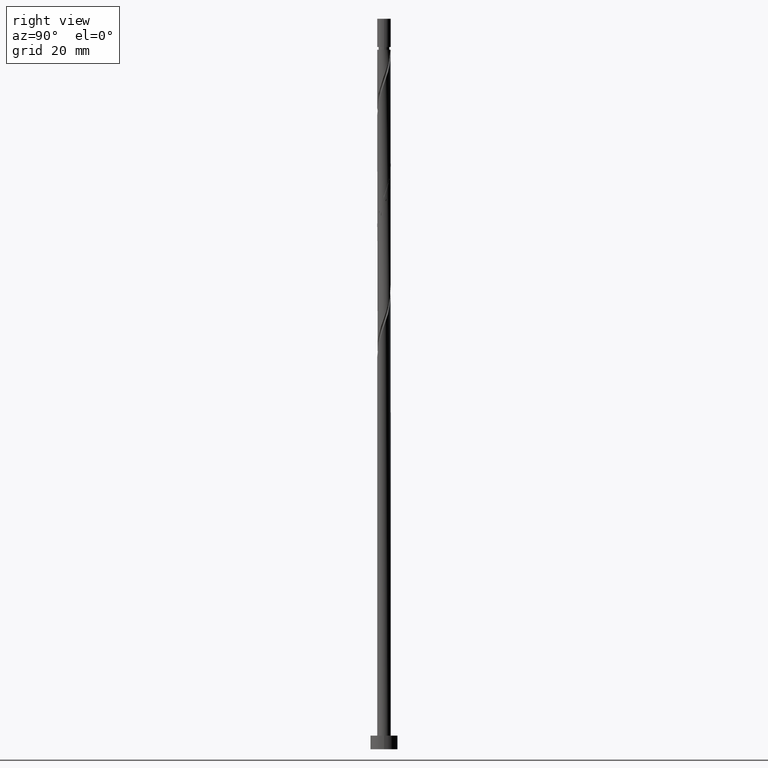
[diagram: clean part render]
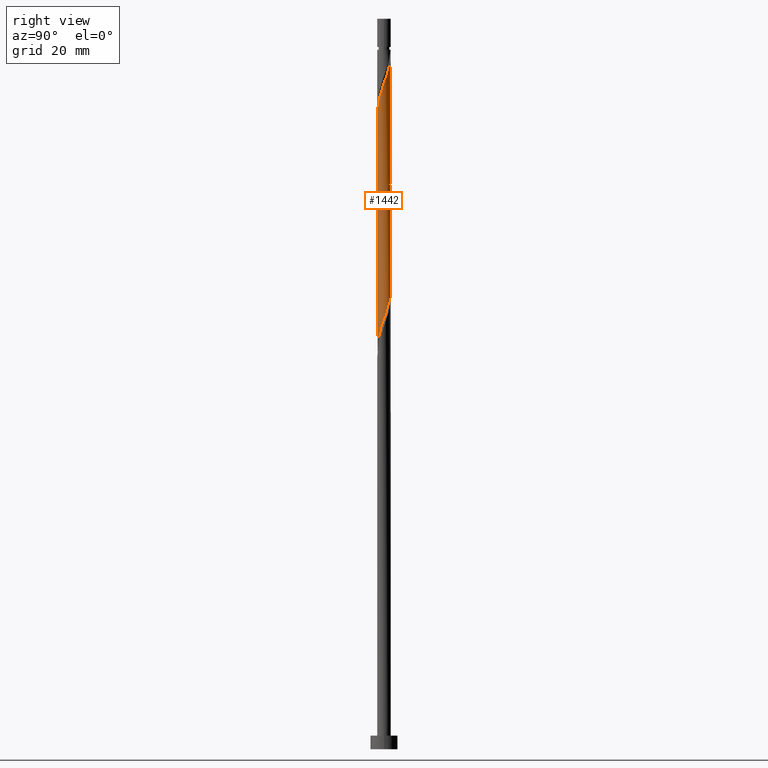
[diagram: same view with one face highlighted and labeled with its STEP entity id]
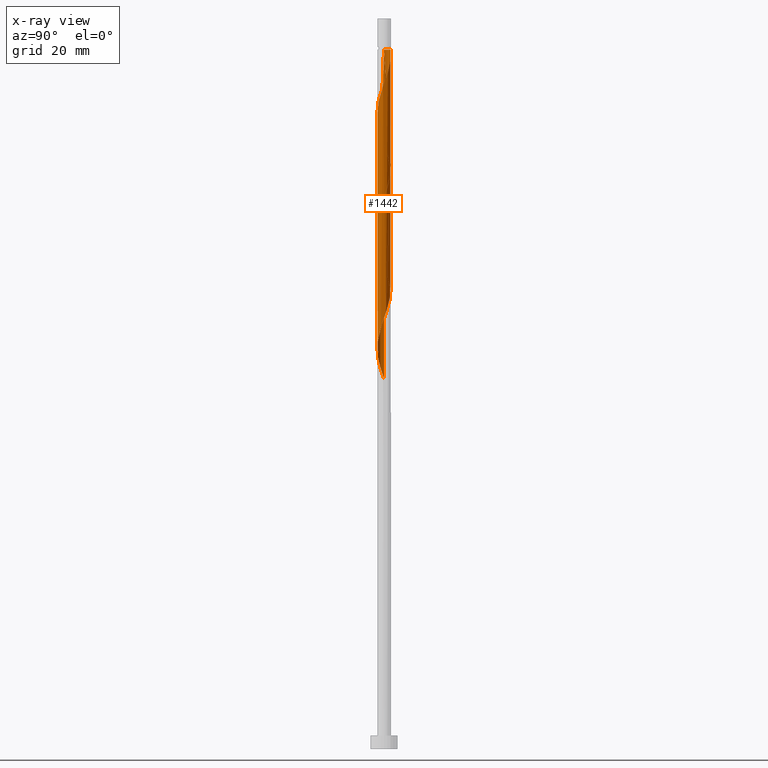
[diagram: x-ray of the same camera — body ghosted, the highlighted face saturated]
A machine part, right view. The second image highlights one B-rep face of the part: STEP entity #1442.
The next image is the same camera in x-ray: the body ghosted, the highlighted face saturated — about 0% of this face is hidden behind the body in this view.
In plain terms, the highlighted cylindrical surface (bore or boss wall) has radius 1.5 mm, axis along (-0, -0, -1).
Its self-contained STEP definition (entity closure, byte-faithful):
#8 = CARTESIAN_POINT ( 'NONE',  ( 0.5098503233045974525, 1.427082721123913878, 100.2378488519035926 ) ) ;
#15 = CARTESIAN_POINT ( 'NONE',  ( 1.499999999999999778, 2.131346950248223336E-15, 121.6933639372650759 ) ) ;
#26 = ORIENTED_EDGE ( 'NONE', *, *, #1044, .F. ) ;
#34 = CARTESIAN_POINT ( 'NONE',  ( -1.086320624467306040, 1.056607754070165717, 131.7530003670551082 ) ) ;
#40 = DIRECTION ( 'NONE',  ( -0.000000000000000000, -0.000000000000000000, -1.000000000000000000 ) ) ;
#48 = EDGE_CURVE ( 'NONE', #680, #933, #635, .T. ) ;
#78 = CARTESIAN_POINT ( 'NONE',  ( 1.497517962423707383, 0.08625515763335768471, 146.9045155185702640 ) ) ;
#83 = CARTESIAN_POINT ( 'NONE',  ( 1.499999999999999778, 2.131346950248223336E-15, 121.6933639372650759 ) ) ;
#90 = CARTESIAN_POINT ( 'NONE',  ( -0.7446362021362263883, -1.319859602977673019, 137.8136064276611137 ) ) ;
#94 = CARTESIAN_POINT ( 'NONE',  ( 0.08714213895937576726, 1.512917278876086069, 101.4499700640247823 ) ) ;
#98 = CARTESIAN_POINT ( 'NONE',  ( 1.213159217434433890, -0.8821817914431652197, 92.35906097311568885 ) ) ;
#104 = CARTESIAN_POINT ( 'NONE',  ( 0.1277418221353510408, -1.494550777617655868, 115.3893640034187200 ) ) ;
#111 = CARTESIAN_POINT ( 'NONE',  ( 1.339997810401561518, -0.7077558288161656108, 119.6317882458429551 ) ) ;
#118 = CARTESIAN_POINT ( 'NONE',  ( 0.7446362021362249450, -1.319859602977671020, 90.54087915493391847 ) ) ;
#120 =( BOUNDED_CURVE ( )  B_SPLINE_CURVE ( 2, ( #1490, #696, #1166, #428, #438, #1137, #421, #1496, #920, #90, #911, #1256, #1286, #1024, #1376, #1388, #1251, #456, #661, #306, #1174, #1395, #686, #572, #78, #298, #798, #561, #201, #1052, #1523, #1039, #1275, #900, #193, #936, #785 ),
 .UNSPECIFIED., .F., .T. ) 
 B_SPLINE_CURVE_WITH_KNOTS ( ( 3, 2, 2, 2, 2, 2, 2, 2, 2, 2, 2, 2, 2, 2, 2, 2, 2, 2, 3 ),
 ( 0.5545252162417514397, 0.5568181818181818787, 0.5681818181818181213, 0.5795454545454545858, 0.5909090909090908283, 0.6022727272727272929, 0.6136363636363636465, 0.6250000000000000000, 0.6363636363636364646, 0.6477272727272727071, 0.6590909090909091717, 0.6704545454545455252, 0.6818181818181818787, 0.6931818181818182323, 0.7045454545454546968, 0.7159090909090909394, 0.7272727272727274039, 0.7386363636363637575, 0.7500000000000001110 ),
 .UNSPECIFIED. ) 
 CURVE ( )  GEOMETRIC_REPRESENTATION_ITEM ( )  RATIONAL_B_SPLINE_CURVE ( ( 0.9061101570135737804, 0.9072237824201559997, 0.9090909090909334855, 0.8998376744372357239, 0.9090909090909334855, 0.8998376744372357239, 0.9090909090909334855, 0.8998376744372357239, 0.9090909090909334855, 0.8998376744372357239, 0.9090909090909334855, 0.8998376744372357239, 0.9090909090909334855, 0.8998376744372357239, 0.9090909090909334855, 0.8998376744372357239, 0.9090909090909334855, 0.8998376744372357239, 0.9090909090909334855, 0.8998376744372357239, 0.9090909090909334855, 0.8998376744372357239, 0.9090909090909334855, 0.8998376744372357239, 0.9090909090909334855, 0.8998376744372357239, 0.9090909090909334855, 0.8998376744372357239, 0.9090909090909334855, 0.8998376744372357239, 0.9090909090909334855, 0.8998376744372357239, 0.9090909090909334855, 0.8998376744372357239, 0.9090909090909334855, 0.8998376744372356129, 0.9090909090909335966 ) ) 
 REPRESENTATION_ITEM ( '' )  );
#145 = DIRECTION ( 'NONE',  ( -0.000000000000000000, -0.000000000000000000, -1.000000000000000000 ) ) ;
#159 = CARTESIAN_POINT ( 'NONE',  ( -0.5436309926831520700, 1.398021939668448566, 129.9348185488732668 ) ) ;
#176 = CIRCLE ( 'NONE', #1292, 1.499999999999993561 ) ;
#177 = CARTESIAN_POINT ( 'NONE',  ( -0.9154784133017651593, 1.188233678523918035, 131.1469397609944849 ) ) ;
#184 = FACE_OUTER_BOUND ( 'NONE', #972, .T. ) ;
#193 = CARTESIAN_POINT ( 'NONE',  ( 0.1277418221353521510, 1.494550777617658754, 152.9651215791763263 ) ) ;
#201 = CARTESIAN_POINT ( 'NONE',  ( 1.213159217434436110, 0.8821817914431661078, 149.3287579428127572 ) ) ;
#210 = CARTESIAN_POINT ( 'NONE',  ( -0.2984962311319866446, -1.469999999999999751, 114.1772427912975161 ) ) ;
#215 = CARTESIAN_POINT ( 'NONE',  ( 1.485116343010913109, -0.3015657354974669579, 120.8439094579641733 ) ) ;
#221 = CARTESIAN_POINT ( 'NONE',  ( 1.045853010636304870, 1.075263446855224236, 98.41966703372175118 ) ) ;
#226 = CARTESIAN_POINT ( 'NONE',  ( -0.08714213895937615584, -1.512917278876086735, 88.11663673069149638 ) ) ;
#234 = VECTOR ( 'NONE', #899, 1000.000000000000000 ) ;
#239 = CARTESIAN_POINT ( 'NONE',  ( 1.509919581836496993, 0.1290554202307504228, 95.38936400341874844 ) ) ;
#257 = ORIENTED_EDGE ( 'NONE', *, *, #1291, .T. ) ;
#262 = CARTESIAN_POINT ( 'NONE',  ( -1.200452554620303758, -0.9248924852164293053, 84.48027309432781351 ) ) ;
#269 = CARTESIAN_POINT ( 'NONE',  ( 0.000000000000000000, 0.000000000000000000, 154.1772427912975161 ) ) ;
#298 = CARTESIAN_POINT ( 'NONE',  ( 1.485116343010915330, 0.3015657354974667359, 147.5105761246308305 ) ) ;
#304 = DIRECTION ( 'NONE',  ( -0.000000000000000000, -0.000000000000000000, -1.000000000000000000 ) ) ;
#306 = CARTESIAN_POINT ( 'NONE',  ( 1.200452554620305756, -0.9248924852164310817, 143.8742124882672044 ) ) ;
#327 = CARTESIAN_POINT ( 'NONE',  ( 0.7005518949784517169, 1.326358564808965745, 126.2984549125096265 ) ) ;
#335 = CARTESIAN_POINT ( 'NONE',  ( -1.412398115979203617, -0.5492212733340102737, 109.9348185488732668 ) ) ;
#339 = CARTESIAN_POINT ( 'NONE',  ( 1.461158848907850416, 0.3391383467823799180, 95.99542460947932909 ) ) ;
#340 = CARTESIAN_POINT ( 'NONE',  ( 1.499999999999999778, 2.131346950248223336E-15, 121.6933639372650759 ) ) ;
#346 = CARTESIAN_POINT ( 'NONE',  ( -1.509919581836496993, -0.1290554202307509224, 108.7226973367520770 ) ) ;
#351 = CARTESIAN_POINT ( 'NONE',  ( 1.412557076706236980, -0.5046607821568163121, 93.57118218523687858 ) ) ;
#358 = CARTESIAN_POINT ( 'NONE',  ( -0.7005518949784516058, -1.326358564808965745, 86.29845491250964074 ) ) ;
#362 = VERTEX_POINT ( 'NONE', #919 ) ;
#420 = VECTOR ( 'NONE', #1285, 1000.000000000000000 ) ;
#421 = CARTESIAN_POINT ( 'NONE',  ( -1.213159217434436110, -0.8821817914431666630, 135.9954246094793575 ) ) ;
#428 = CARTESIAN_POINT ( 'NONE',  ( -1.485116343010915330, -0.3015657354974669024, 134.1772427912975161 ) ) ;
#438 = CARTESIAN_POINT ( 'NONE',  ( -1.412557076706239645, -0.5046607821568167562, 134.7833033973581109 ) ) ;
#443 = VERTEX_POINT ( 'NONE', #536 ) ;
#447 = LINE ( 'NONE', #1097, #420 ) ;
#456 = CARTESIAN_POINT ( 'NONE',  ( 0.8912534666523075355, -1.225634408494020722, 142.6620912761460147 ) ) ;
#464 = CARTESIAN_POINT ( 'NONE',  ( -1.086320624467306040, 1.056607754070165717, 105.0863337003884226 ) ) ;
#469 = CARTESIAN_POINT ( 'NONE',  ( -0.7005518949784516058, -1.326358564808965745, 112.9651215791762979 ) ) ;
#474 = CARTESIAN_POINT ( 'NONE',  ( -0.7446362021362251671, 1.319859602977671020, 103.8742124882672186 ) ) ;
#481 = CARTESIAN_POINT ( 'NONE',  ( -0.5098503233045974525, -1.427082721123913878, 86.90451551857026402 ) ) ;
#489 = CARTESIAN_POINT ( 'NONE',  ( -1.045853010636305314, -1.075263446855223792, 111.7530003670550656 ) ) ;
#493 = DIRECTION ( 'NONE',  ( -1.000000000000000000, 0.000000000000000000, 0.000000000000000000 ) ) ;
#498 = CARTESIAN_POINT ( 'NONE',  ( -1.500000000000000000, 0.04316328978573589353, 134.9045992658801936 ) ) ;
#502 = CARTESIAN_POINT ( 'NONE',  ( -1.500000000000000000, -3.440068761804149870E-16, 135.0266972705984188 ) ) ;
#510 = ORIENTED_EDGE ( 'NONE', *, *, #558, .F. ) ;
#512 = VERTEX_POINT ( 'NONE', #1136 ) ;
#515 = AXIS2_PLACEMENT_3D ( 'NONE', #897, #304, #534 ) ;
#517 = CARTESIAN_POINT ( 'NONE',  ( -1.412398115979203617, -0.5492212733340102737, 83.26815188220662378 ) ) ;
#527 = LINE ( 'NONE', #1116, #741 ) ;
#534 = DIRECTION ( 'NONE',  ( -1.000000000000000000, 0.000000000000000000, 0.000000000000000000 ) ) ;
#536 = CARTESIAN_POINT ( 'NONE',  ( -0.2984962311320396577, 1.470000000000532214, 154.1772427912974592 ) ) ;
#558 = EDGE_CURVE ( 'NONE', #563, #933, #560, .T. ) ;
#560 = LINE ( 'NONE', #1489, #234 ) ;
#561 = CARTESIAN_POINT ( 'NONE',  ( 1.339997810401563738, 0.7077558288161661659, 148.7226973367520486 ) ) ;
#563 = VERTEX_POINT ( 'NONE', #784 ) ;
#572 = CARTESIAN_POINT ( 'NONE',  ( 1.509919581836498992, -0.1290554202307514498, 146.2984549125096407 ) ) ;
#575 = CARTESIAN_POINT ( 'NONE',  ( 1.500000000000000222, 0.1717933910776848205, 122.1793238902364180 ) ) ;
#581 = CARTESIAN_POINT ( 'NONE',  ( 0.2984962311319868666, 1.469999999999999751, 100.8439094579641448 ) ) ;
#585 = CARTESIAN_POINT ( 'NONE',  ( -0.3426257832300788064, 1.476184276359225889, 102.6620912761460147 ) ) ;
#593 = CARTESIAN_POINT ( 'NONE',  ( -1.200452554620303758, -0.9248924852164293053, 111.1469397609944707 ) ) ;
#597 = EDGE_CURVE ( 'NONE', #731, #362, #447, .T. ) ;
#600 = CARTESIAN_POINT ( 'NONE',  ( 1.500000000000000000, -0.04316328978573300001, 121.5712659325468366 ) ) ;
#607 = CARTESIAN_POINT ( 'NONE',  ( -0.8912534666523063143, -1.225634408494019167, 85.69239430644904587 ) ) ;
#624 = CARTESIAN_POINT ( 'NONE',  ( -1.306425335299753243, -0.7370568792752196785, 83.87421248826719022 ) ) ;
#629 = CARTESIAN_POINT ( 'NONE',  ( -1.339997810401561518, 0.7077558288161657218, 132.9651215791762979 ) ) ;
#635 =( BOUNDED_CURVE ( )  B_SPLINE_CURVE ( 2, ( #1011, #498, #984, #1329, #1227, #629, #1111, #34, #177, #1243, #159, #716, #1513, #1308, #1407, #1412, #327, #704, #807, #816, #943, #1287, #1175, #575, #340 ),
 .UNSPECIFIED., .F., .T. ) 
 B_SPLINE_CURVE_WITH_KNOTS ( ( 3, 2, 2, 2, 2, 2, 2, 2, 2, 2, 2, 2, 3 ),
 ( 0.4295252162417514397, 0.4318181818181818232, 0.4431818181818181768, 0.4545454545454545303, 0.4659090909090908839, 0.4772727272727272929, 0.4886363636363636465, 0.5000000000000000000, 0.5113636363636363535, 0.5227272727272727071, 0.5340909090909090606, 0.5454545454545454142, 0.5545252162417512176 ),
 .UNSPECIFIED. ) 
 CURVE ( )  GEOMETRIC_REPRESENTATION_ITEM ( )  RATIONAL_B_SPLINE_CURVE ( ( 0.9061101570135671190, 0.9072237824201493384, 0.9090909090909268242, 0.8998376744372288405, 0.9090909090909268242, 0.8998376744372288405, 0.9090909090909268242, 0.8998376744372288405, 0.9090909090909268242, 0.8998376744372288405, 0.9090909090909268242, 0.8998376744372288405, 0.9090909090909268242, 0.8998376744372288405, 0.9090909090909268242, 0.8998376744372288405, 0.9090909090909268242, 0.8998376744372288405, 0.9090909090909268242, 0.8998376744372288405, 0.9090909090909268242, 0.8998376744372288405, 0.9090909090909268242, 0.9017048011080064374, 0.9061101570135670080 ) ) 
 REPRESENTATION_ITEM ( '' )  );
#661 = CARTESIAN_POINT ( 'NONE',  ( 1.045853010636306202, -1.075263446855226235, 143.2681518822066096 ) ) ;
#680 = VERTEX_POINT ( 'NONE', #502 ) ;
#686 = CARTESIAN_POINT ( 'NONE',  ( 1.461158848907852859, -0.3391383467823813058, 145.6923943064491311 ) ) ;
#696 = CARTESIAN_POINT ( 'NONE',  ( -1.500000000000002442, -0.04316328978573490127, 133.4498863167148386 ) ) ;
#703 = CARTESIAN_POINT ( 'NONE',  ( -1.497517962423704718, 0.08625515763335817043, 108.1166367306914537 ) ) ;
#704 = CARTESIAN_POINT ( 'NONE',  ( 0.8912534666523063143, 1.225634408494018723, 125.6923943064490459 ) ) ;
#710 = CARTESIAN_POINT ( 'NONE',  ( 1.213159217434433890, -0.8821817914431652197, 119.0257276397823745 ) ) ;
#715 = CARTESIAN_POINT ( 'NONE',  ( 1.200452554620303536, 0.9248924852164295274, 97.81360642766118474 ) ) ;
#716 = CARTESIAN_POINT ( 'NONE',  ( -0.3426257832300788064, 1.476184276359225889, 129.3287579428126719 ) ) ;
#722 = CARTESIAN_POINT ( 'NONE',  ( 1.497517962423704718, -0.08625515763335836472, 94.78330339735811094 ) ) ;
#728 = CARTESIAN_POINT ( 'NONE',  ( -0.8912534666523063143, -1.225634408494019167, 112.3590609731156889 ) ) ;
#731 = VERTEX_POINT ( 'NONE', #750 ) ;
#741 = VECTOR ( 'NONE', #40, 1000.000000000000000 ) ;
#750 = CARTESIAN_POINT ( 'NONE',  ( -1.500000000000002442, 7.702762662300539942E-16, 133.3277883119966134 ) ) ;
#752 = CARTESIAN_POINT ( 'NONE',  ( -1.500000000000000444, 1.757426432660816093E-15, 81.69336393726507595 ) ) ;
#765 = CARTESIAN_POINT ( 'NONE',  ( -1.500000000000000222, -0.1717933910776853201, 82.17932389023640383 ) ) ;
#784 = CARTESIAN_POINT ( 'NONE',  ( 1.500000000000000222, 1.836970198721030181E-16, 154.1772427912975161 ) ) ;
#785 = CARTESIAN_POINT ( 'NONE',  ( -0.2984962311320396577, 1.470000000000532214, 154.1772427912974592 ) ) ;
#796 = CYLINDRICAL_SURFACE ( 'NONE', #515, 1.500000000000000222 ) ;
#798 = CARTESIAN_POINT ( 'NONE',  ( 1.412557076706239645, 0.5046607821568165342, 148.1166367306914822 ) ) ;
#807 = CARTESIAN_POINT ( 'NONE',  ( 1.045853010636304870, 1.075263446855224236, 125.0863337003884368 ) ) ;
#814 = CARTESIAN_POINT ( 'NONE',  ( -0.08714213895937615584, -1.512917278876086735, 114.7833033973581252 ) ) ;
#816 = CARTESIAN_POINT ( 'NONE',  ( 1.200452554620303536, 0.9248924852164295274, 124.4802730943278419 ) ) ;
#820 = CARTESIAN_POINT ( 'NONE',  ( 1.339997810401561518, -0.7077558288161656108, 92.96512157917629793 ) ) ;
#827 = CARTESIAN_POINT ( 'NONE',  ( -0.5436309926831520700, 1.398021939668448566, 103.2681518822065811 ) ) ;
#834 = CARTESIAN_POINT ( 'NONE',  ( 0.9154784133017650483, -1.188233678523918035, 91.14693976099447070 ) ) ;
#841 = CARTESIAN_POINT ( 'NONE',  ( 0.1277418221353510408, -1.494550777617655868, 88.72269733675204861 ) ) ;
#897 = CARTESIAN_POINT ( 'NONE',  ( 0.000000000000000000, 0.000000000000000000, 161.0000000000000000 ) ) ;
#899 = DIRECTION ( 'NONE',  ( -0.000000000000000000, -0.000000000000000000, -1.000000000000000000 ) ) ;
#900 = CARTESIAN_POINT ( 'NONE',  ( 0.3426257832300796946, 1.476184276359228109, 152.3590609731157599 ) ) ;
#911 = CARTESIAN_POINT ( 'NONE',  ( -0.5436309926831534023, -1.398021939668451008, 138.4196670337217654 ) ) ;
#919 = CARTESIAN_POINT ( 'NONE',  ( -1.500000000000000444, 1.757426432660816093E-15, 81.69336393726507595 ) ) ;
#920 = CARTESIAN_POINT ( 'NONE',  ( -0.9154784133017672687, -1.188233678523920034, 137.2075458216005472 ) ) ;
#930 = EDGE_CURVE ( 'NONE', #731, #443, #120, .T. ) ;
#933 = VERTEX_POINT ( 'NONE', #83 ) ;
#936 = CARTESIAN_POINT ( 'NONE',  ( -0.08714213895937755749, 1.512917278876088734, 153.5711821852369781 ) ) ;
#942 = CARTESIAN_POINT ( 'NONE',  ( 1.412557076706236980, -0.5046607821568163121, 120.2378488519035642 ) ) ;
#943 = CARTESIAN_POINT ( 'NONE',  ( 1.306425335299753243, 0.7370568792752199005, 123.8742124882671902 ) ) ;
#948 = CARTESIAN_POINT ( 'NONE',  ( 0.5436309926831520700, -1.398021939668448566, 89.93481854887326676 ) ) ;
#956 = CARTESIAN_POINT ( 'NONE',  ( 1.306425335299753243, 0.7370568792752199005, 97.20754582160053303 ) ) ;
#963 = CARTESIAN_POINT ( 'NONE',  ( -0.5098503233045974525, -1.427082721123913878, 113.5711821852369354 ) ) ;
#972 = EDGE_LOOP ( 'NONE', ( #26, #257, #1252, #1219, #1493, #510, #1042, #993 ) ) ;
#984 = CARTESIAN_POINT ( 'NONE',  ( -1.497517962423704718, 0.08625515763335817043, 134.7833033973581109 ) ) ;
#993 = ORIENTED_EDGE ( 'NONE', *, *, #48, .F. ) ;
#1011 = CARTESIAN_POINT ( 'NONE',  ( -1.500000000000000000, -3.440068761804149870E-16, 135.0266972705984188 ) ) ;
#1018 = EDGE_CURVE ( 'NONE', #933, #362, #1163, .T. ) ;
#1024 = CARTESIAN_POINT ( 'NONE',  ( 0.08714213895937560073, -1.512917278876088512, 140.2378488519034931 ) ) ;
#1039 = CARTESIAN_POINT ( 'NONE',  ( 0.7446362021362260553, 1.319859602977673019, 151.1469397609945133 ) ) ;
#1042 = ORIENTED_EDGE ( 'NONE', *, *, #558, .T. ) ;
#1044 = EDGE_CURVE ( 'NONE', #512, #680, #527, .T. ) ;
#1052 = CARTESIAN_POINT ( 'NONE',  ( 1.086320624467308482, 1.056607754070166161, 149.9348185488732952 ) ) ;
#1062 = CARTESIAN_POINT ( 'NONE',  ( 0.8912534666523063143, 1.225634408494018723, 99.02572763978238868 ) ) ;
#1069 = CARTESIAN_POINT ( 'NONE',  ( 1.086320624467306484, -1.056607754070165273, 91.75300036705510820 ) ) ;
#1080 = CARTESIAN_POINT ( 'NONE',  ( -1.306425335299753243, -0.7370568792752196785, 110.5408791549338758 ) ) ;
#1086 = CARTESIAN_POINT ( 'NONE',  ( 0.5436309926831520700, -1.398021939668448566, 116.6014852155399524 ) ) ;
#1092 = CARTESIAN_POINT ( 'NONE',  ( -1.045853010636305314, -1.075263446855223792, 85.08633370038840837 ) ) ;
#1097 = CARTESIAN_POINT ( 'NONE',  ( -1.500000000000000222, 0.000000000000000000, 161.0000000000000000 ) ) ;
#1111 = CARTESIAN_POINT ( 'NONE',  ( -1.213159217434433668, 0.8821817914431653307, 132.3590609731157031 ) ) ;
#1116 = CARTESIAN_POINT ( 'NONE',  ( -1.500000000000000222, 0.000000000000000000, 161.0000000000000000 ) ) ;
#1136 = CARTESIAN_POINT ( 'NONE',  ( -1.499999999999993561, 0.000000000000000000, 154.1772427912975161 ) ) ;
#1137 = CARTESIAN_POINT ( 'NONE',  ( -1.339997810401563294, -0.7077558288161666100, 135.3893640034187626 ) ) ;
#1163 =( BOUNDED_CURVE ( )  B_SPLINE_CURVE ( 2, ( #15, #600, #1543, #215, #942, #111, #710, #1194, #1406, #1210, #1086, #1295, #104, #814, #210, #963, #469, #728, #489, #593, #1080, #335, #1417, #346, #703, #1301, #1411, #1431, #1189, #464, #1325, #474, #827, #585, #1179, #94, #581, #8, #1307, #1062, #221, #715, #956, #1531, #339, #239, #722, #1535, #351, #820, #98, #1069, #834, #118, #948, #1315, #841, #226, #1202, #481, #358, #607, #1092, #262, #624, #517, #1353, #765, #752 ),
 .UNSPECIFIED., .F., .T. ) 
 B_SPLINE_CURVE_WITH_KNOTS ( ( 3, 2, 2, 2, 2, 2, 2, 2, 2, 2, 2, 2, 2, 2, 2, 2, 2, 2, 2, 2, 2, 2, 2, 2, 2, 2, 2, 2, 2, 2, 2, 2, 2, 2, 3 ),
 ( 0.5545252162417512176, 0.5568181818181817677, 0.5681818181818182323, 0.5795454545454545858, 0.5909090909090909394, 0.6022727272727272929, 0.6136363636363636465, 0.6250000000000000000, 0.6363636363636363535, 0.6477272727272727071, 0.6590909090909090606, 0.6704545454545454142, 0.6818181818181817677, 0.6931818181818182323, 0.7045454545454545858, 0.7159090909090909394, 0.7272727272727272929, 0.7386363636363636465, 0.7500000000000000000, 0.7613636363636363535, 0.7727272727272727071, 0.7840909090909090606, 0.7954545454545454142, 0.8068181818181817677, 0.8181818181818182323, 0.8295454545454545858, 0.8409090909090909394, 0.8522727272727272929, 0.8636363636363636465, 0.8750000000000000000, 0.8863636363636363535, 0.8977272727272727071, 0.9090909090909090606, 0.9204545454545454142, 0.9295252162417512176 ),
 .UNSPECIFIED. ) 
 CURVE ( )  GEOMETRIC_REPRESENTATION_ITEM ( )  RATIONAL_B_SPLINE_CURVE ( ( 0.9061101570135670080, 0.9072237824201492273, 0.9090909090909268242, 0.8998376744372288405, 0.9090909090909268242, 0.8998376744372288405, 0.9090909090909268242, 0.8998376744372288405, 0.9090909090909268242, 0.8998376744372288405, 0.9090909090909268242, 0.8998376744372288405, 0.9090909090909268242, 0.8998376744372288405, 0.9090909090909268242, 0.8998376744372288405, 0.9090909090909268242, 0.8998376744372288405, 0.9090909090909268242, 0.8998376744372288405, 0.9090909090909268242, 0.8998376744372288405, 0.9090909090909268242, 0.8998376744372288405, 0.9090909090909268242, 0.8998376744372288405, 0.9090909090909268242, 0.8998376744372288405, 0.9090909090909268242, 0.8998376744372288405, 0.9090909090909268242, 0.8998376744372288405, 0.9090909090909268242, 0.8998376744372288405, 0.9090909090909268242, 0.8998376744372288405, 0.9090909090909268242, 0.8998376744372288405, 0.9090909090909268242, 0.8998376744372288405, 0.9090909090909268242, 0.8998376744372288405, 0.9090909090909268242, 0.8998376744372288405, 0.9090909090909268242, 0.8998376744372288405, 0.9090909090909268242, 0.8998376744372288405, 0.9090909090909268242, 0.8998376744372288405, 0.9090909090909268242, 0.8998376744372288405, 0.9090909090909268242, 0.8998376744372288405, 0.9090909090909268242, 0.8998376744372288405, 0.9090909090909268242, 0.8998376744372288405, 0.9090909090909268242, 0.8998376744372288405, 0.9090909090909268242, 0.8998376744372288405, 0.9090909090909268242, 0.8998376744372288405, 0.9090909090909268242, 0.8998376744372288405, 0.9090909090909268242, 0.9017048011080064374, 0.9061101570135670080 ) ) 
 REPRESENTATION_ITEM ( '' )  );
#1166 = CARTESIAN_POINT ( 'NONE',  ( -1.497517962423707383, -0.08625515763335786512, 133.5711821852368928 ) ) ;
#1174 = CARTESIAN_POINT ( 'NONE',  ( 1.306425335299755464, -0.7370568792752213438, 144.4802730943279130 ) ) ;
#1175 = CARTESIAN_POINT ( 'NONE',  ( 1.461158848907850416, 0.3391383467823799180, 122.6620912761459863 ) ) ;
#1179 = CARTESIAN_POINT ( 'NONE',  ( -0.1277418221353515404, 1.494550777617655868, 102.0560306700853914 ) ) ;
#1189 = CARTESIAN_POINT ( 'NONE',  ( -1.213159217434433668, 0.8821817914431653307, 105.6923943064490317 ) ) ;
#1194 = CARTESIAN_POINT ( 'NONE',  ( 1.086320624467306484, -1.056607754070165273, 118.4196670337217370 ) ) ;
#1202 = CARTESIAN_POINT ( 'NONE',  ( -0.2984962311319866446, -1.469999999999999751, 87.51057612463084467 ) ) ;
#1210 = CARTESIAN_POINT ( 'NONE',  ( 0.7446362021362249450, -1.319859602977671020, 117.2075458216005188 ) ) ;
#1219 = ORIENTED_EDGE ( 'NONE', *, *, #597, .T. ) ;
#1227 = CARTESIAN_POINT ( 'NONE',  ( -1.412557076706236980, 0.5046607821568160901, 133.5711821852368928 ) ) ;
#1243 = CARTESIAN_POINT ( 'NONE',  ( -0.7446362021362251671, 1.319859602977671020, 130.5408791549338900 ) ) ;
#1251 = CARTESIAN_POINT ( 'NONE',  ( 0.7005518949784523830, -1.326358564808968632, 142.0560306700853914 ) ) ;
#1252 = ORIENTED_EDGE ( 'NONE', *, *, #930, .F. ) ;
#1256 = CARTESIAN_POINT ( 'NONE',  ( -0.3426257832300795281, -1.476184276359228109, 139.0257276397823887 ) ) ;
#1275 = CARTESIAN_POINT ( 'NONE',  ( 0.5436309926831531802, 1.398021939668451008, 151.7530003670551366 ) ) ;
#1285 = DIRECTION ( 'NONE',  ( -0.000000000000000000, -0.000000000000000000, -1.000000000000000000 ) ) ;
#1286 = CARTESIAN_POINT ( 'NONE',  ( -0.1277418221353519845, -1.494550777617658754, 139.6317882458429835 ) ) ;
#1287 = CARTESIAN_POINT ( 'NONE',  ( 1.412398115979204061, 0.5492212733340094966, 123.2681518822066096 ) ) ;
#1291 = EDGE_CURVE ( 'NONE', #512, #443, #176, .T. ) ;
#1292 = AXIS2_PLACEMENT_3D ( 'NONE', #269, #145, #493 ) ;
#1295 = CARTESIAN_POINT ( 'NONE',  ( 0.3426257832300790840, -1.476184276359225667, 115.9954246094793575 ) ) ;
#1301 = CARTESIAN_POINT ( 'NONE',  ( -1.485116343010913109, 0.3015657354974668469, 107.5105761246308589 ) ) ;
#1307 = CARTESIAN_POINT ( 'NONE',  ( 0.7005518949784517169, 1.326358564808965745, 99.63178824584298354 ) ) ;
#1308 = CARTESIAN_POINT ( 'NONE',  ( 0.08714213895937576726, 1.512917278876086069, 128.1166367306914253 ) ) ;
#1315 = CARTESIAN_POINT ( 'NONE',  ( 0.3426257832300790840, -1.476184276359225667, 89.32875794281268611 ) ) ;
#1325 = CARTESIAN_POINT ( 'NONE',  ( -0.9154784133017651593, 1.188233678523918035, 104.4802730943278135 ) ) ;
#1329 = CARTESIAN_POINT ( 'NONE',  ( -1.485116343010913109, 0.3015657354974668469, 134.1772427912975161 ) ) ;
#1353 = CARTESIAN_POINT ( 'NONE',  ( -1.461158848907849972, -0.3391383467823803621, 82.66209127614600050 ) ) ;
#1376 = CARTESIAN_POINT ( 'NONE',  ( 0.2984962311319867556, -1.470000000000002416, 140.8439094579642017 ) ) ;
#1388 = CARTESIAN_POINT ( 'NONE',  ( 0.5098503233045976746, -1.427082721123916320, 141.4499700640247966 ) ) ;
#1395 = CARTESIAN_POINT ( 'NONE',  ( 1.412398115979206503, -0.5492212733340109398, 145.0863337003884226 ) ) ;
#1406 = CARTESIAN_POINT ( 'NONE',  ( 0.9154784133017650483, -1.188233678523918035, 117.8136064276611279 ) ) ;
#1407 = CARTESIAN_POINT ( 'NONE',  ( 0.2984962311319868666, 1.469999999999999751, 127.5105761246308305 ) ) ;
#1411 = CARTESIAN_POINT ( 'NONE',  ( -1.412557076706236980, 0.5046607821568160901, 106.9045155185702356 ) ) ;
#1412 = CARTESIAN_POINT ( 'NONE',  ( 0.5098503233045974525, 1.427082721123913878, 126.9045155185702072 ) ) ;
#1417 = CARTESIAN_POINT ( 'NONE',  ( -1.461158848907849972, -0.3391383467823803621, 109.3287579428126435 ) ) ;
#1431 = CARTESIAN_POINT ( 'NONE',  ( -1.339997810401561518, 0.7077558288161657218, 106.2984549125096549 ) ) ;
#1442 = ADVANCED_FACE ( 'NONE', ( #184 ), #796, .T. ) ;
#1489 = CARTESIAN_POINT ( 'NONE',  ( 1.500000000000000222, 1.836970198721030181E-16, 161.0000000000000000 ) ) ;
#1490 = CARTESIAN_POINT ( 'NONE',  ( -1.500000000000002442, 7.702762662300539942E-16, 133.3277883119966134 ) ) ;
#1493 = ORIENTED_EDGE ( 'NONE', *, *, #1018, .F. ) ;
#1496 = CARTESIAN_POINT ( 'NONE',  ( -1.086320624467308038, -1.056607754070166383, 136.6014852155399524 ) ) ;
#1513 = CARTESIAN_POINT ( 'NONE',  ( -0.1277418221353515404, 1.494550777617655868, 128.7226973367520486 ) ) ;
#1523 = CARTESIAN_POINT ( 'NONE',  ( 0.9154784133017670467, 1.188233678523920034, 150.5408791549338332 ) ) ;
#1531 = CARTESIAN_POINT ( 'NONE',  ( 1.412398115979204061, 0.5492212733340094966, 96.60148521553995238 ) ) ;
#1535 = CARTESIAN_POINT ( 'NONE',  ( 1.485116343010913109, -0.3015657354974669579, 94.17724279129753029 ) ) ;
#1543 = CARTESIAN_POINT ( 'NONE',  ( 1.497517962423704718, -0.08625515763335836472, 121.4499700640247681 ) ) ;